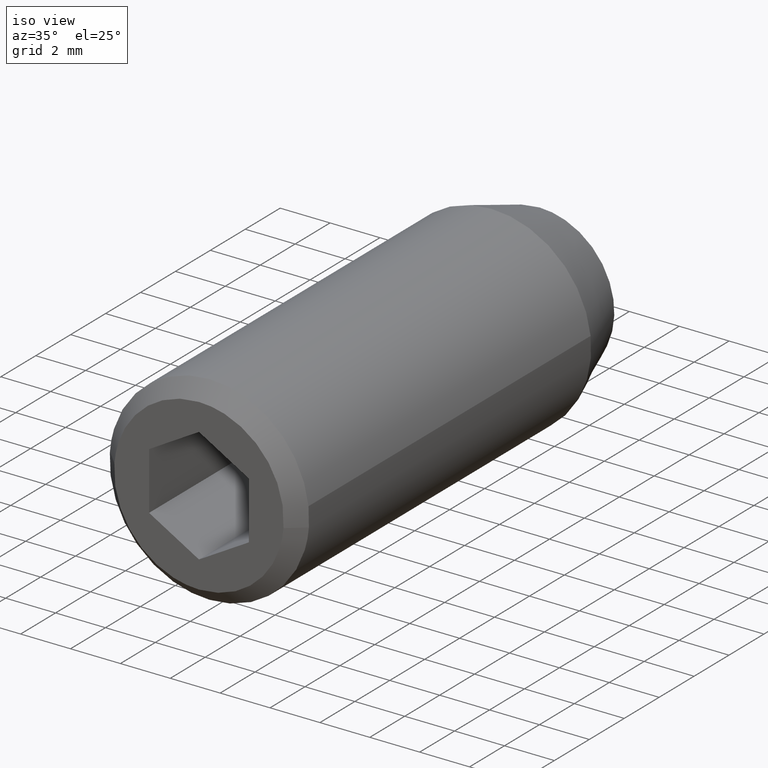
[diagram: clean part render]
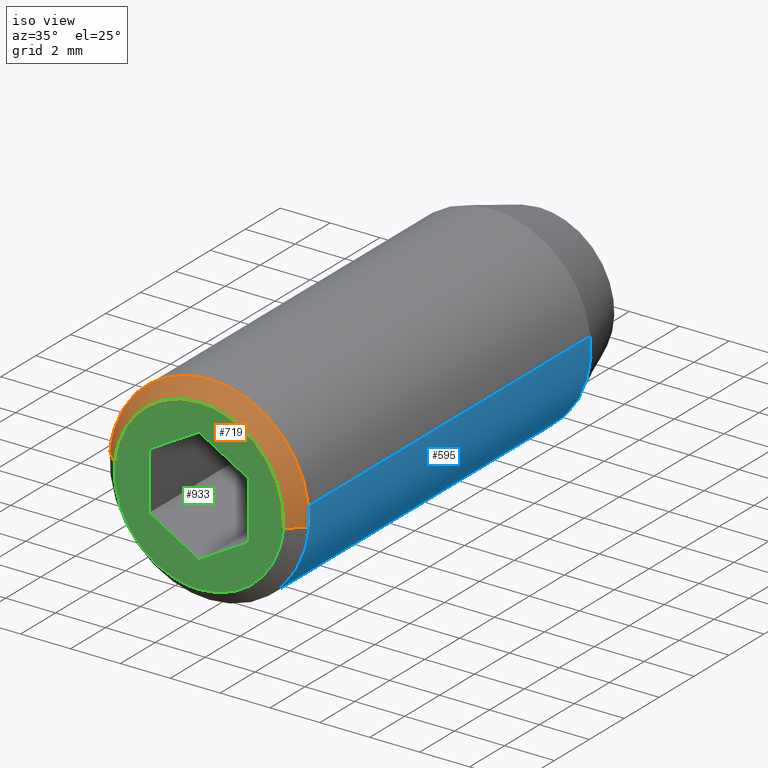
[diagram: same view with three faces highlighted in distinct colors, each labeled with its STEP entity id]
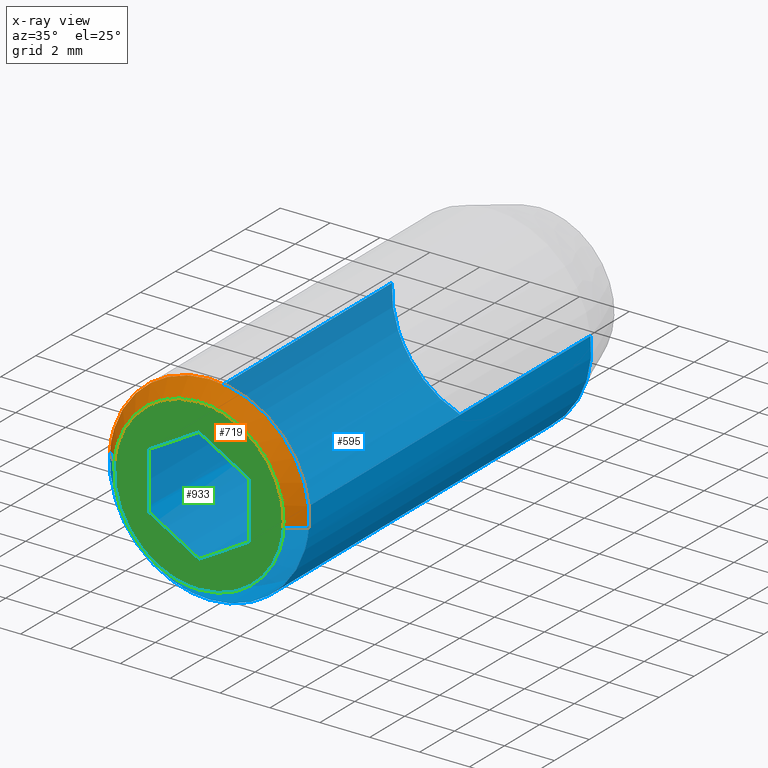
[diagram: x-ray of the same camera — body ghosted, the three highlighted faces saturated]
A machine part, iso view with three faces highlighted in distinct colors.
The next image is the same camera in x-ray (body ghosted, the three faces saturated) — at least one of them is partly hidden behind the body in this view.
Their STEP definitions:

[orange] entity #719 — the highlighted face is a freeform B-spline surface patch.
#457=CARTESIAN_POINT('',(3.973876773741293,-18.899999999999999,0.456402658975039));
#458=VERTEX_POINT('',#457);
#459=CARTESIAN_POINT('',(0.0,-18.899999999999999,3.999999999999999));
#460=VERTEX_POINT('',#459);
#461=CARTESIAN_POINT('',(3.973876773741293,-18.900000000000002,0.456402658975039));
#462=CARTESIAN_POINT('',(3.566892022851084,-18.899999999999999,3.999999999999999));
#463=CARTESIAN_POINT('',(0.0,-18.899999999999999,3.999999999999999));
#471=(BOUNDED_CURVE()B_SPLINE_CURVE(2,(#461,#462,#463),.UNSPECIFIED.,.F.,.U.)B_SPLINE_CURVE_WITH_KNOTS((3,3),(0.269767755877767,0.500000000000000),.UNSPECIFIED.)CURVE()GEOMETRIC_REPRESENTATION_ITEM()RATIONAL_B_SPLINE_CURVE((0.957343736458379,0.730266147777579,1.0))REPRESENTATION_ITEM(''));
#472=EDGE_CURVE('',#458,#460,#471,.T.);
#488=CARTESIAN_POINT('',(-3.987669334934627,-18.899999999994701,0.313836382952172));
#489=VERTEX_POINT('',#488);
#503=CARTESIAN_POINT('',(0.0,-18.899999999999999,3.999999999999999));
#504=CARTESIAN_POINT('',(-3.697561966557721,-18.900000000000006,4.0));
#505=CARTESIAN_POINT('',(-3.987669334934627,-18.899999999994701,0.313836382952172));
#513=(BOUNDED_CURVE()B_SPLINE_CURVE(2,(#503,#504,#505),.UNSPECIFIED.,.F.,.U.)B_SPLINE_CURVE_WITH_KNOTS((3,3),(0.500000000000000,0.736331300629296),.UNSPECIFIED.)CURVE()GEOMETRIC_REPRESENTATION_ITEM()RATIONAL_B_SPLINE_CURVE((1.0,0.723120658609264,0.969723356164571))REPRESENTATION_ITEM(''));
#514=EDGE_CURVE('',#460,#489,#513,.T.);
#541=CARTESIAN_POINT('',(3.987669334934625,-18.899999999994701,-0.313836382952173));
#542=VERTEX_POINT('',#541);
#543=CARTESIAN_POINT('',(3.987669334934625,-18.899999999994698,-0.313836382952173));
#544=CARTESIAN_POINT('',(4.000000000000001,-18.899999999999991,-0.157160428071241));
#545=CARTESIAN_POINT('',(4.0,-18.899999999999999,-6.735335E-016));
#546=CARTESIAN_POINT('',(4.000000000000000,-18.899999999999999,0.228948940114904));
#547=CARTESIAN_POINT('',(3.973876773741293,-18.900000000000006,0.456402658975039));
#555=(BOUNDED_CURVE()B_SPLINE_CURVE(2,(#543,#544,#545,#546,#547),.UNSPECIFIED.,.F.,.U.)B_SPLINE_CURVE_WITH_KNOTS((3,2,3),(0.236331300629296,0.250000000000000,0.269767755877768),.UNSPECIFIED.)CURVE()GEOMETRIC_REPRESENTATION_ITEM()RATIONAL_B_SPLINE_CURVE((0.969723356164571,0.983986122577284,1.0,0.976840633408968,0.957343736458379))REPRESENTATION_ITEM(''));
#556=EDGE_CURVE('',#542,#458,#555,.T.);
#615=CARTESIAN_POINT('',(3.389518934693979,-19.499999999996639,-0.266760925500477));
#616=VERTEX_POINT('',#615);
#617=CARTESIAN_POINT('',(3.389518934693979,-19.499999999996639,-0.266760925500477));
#618=CARTESIAN_POINT('',(3.987669334934625,-18.899999999994701,-0.313836382952173));
#619=QUASI_UNIFORM_CURVE('',1,(#617,#618),.UNSPECIFIED.,.F.,.U.);
#620=EDGE_CURVE('',#616,#542,#619,.T.);
#637=CARTESIAN_POINT('',(-3.389518934693980,-19.499999999996639,0.266760925500477));
#638=VERTEX_POINT('',#637);
#654=CARTESIAN_POINT('',(-3.389518934693980,-19.499999999996639,0.266760925500477));
#655=CARTESIAN_POINT('',(-3.987669334934627,-18.899999999994701,0.313836382952172));
#656=QUASI_UNIFORM_CURVE('',1,(#654,#655),.UNSPECIFIED.,.F.,.U.);
#657=EDGE_CURVE('',#638,#489,#656,.T.);
#664=CARTESIAN_POINT('',(-3.374565174686632,-19.515000000000001,0.265584039038756));
#665=CARTESIAN_POINT('',(-3.108981135647875,-19.515000000000004,3.640149213725388));
#666=CARTESIAN_POINT('',(0.265584039038757,-19.515000000000001,3.374565174686631));
#667=CARTESIAN_POINT('',(3.640149213725390,-19.515000000000004,3.108981135647875));
#668=CARTESIAN_POINT('',(3.374565174686632,-19.515000000000001,-0.265584039038757));
#669=CARTESIAN_POINT('',(-4.002996938938681,-18.884625000000000,0.315042691508199));
#670=CARTESIAN_POINT('',(-3.687954247430481,-18.884624999999993,4.318039630446880));
#671=CARTESIAN_POINT('',(0.315042691508200,-18.884625000000000,4.002996938938680));
#672=CARTESIAN_POINT('',(4.318039630446882,-18.884624999999993,3.687954247430481));
#673=CARTESIAN_POINT('',(4.002996938938681,-18.884625000000000,-0.315042691508200));
#681=(BOUNDED_SURFACE()B_SPLINE_SURFACE(2,1,((#664,#669),(#665,#670),(#666,#671),(#667,#672),(#668,#673)),.UNSPECIFIED.,.F.,.F.,.U.)B_SPLINE_SURFACE_WITH_KNOTS((3,2,3),(2,2),(0.0,6.652891132055504,13.305782264111009),(0.0,1.0),.UNSPECIFIED.)GEOMETRIC_REPRESENTATION_ITEM()RATIONAL_B_SPLINE_SURFACE(((1.0,1.0),(0.707106781186548,0.707106781186548),(1.0,1.0),(0.707106781186548,0.707106781186548),(1.0,1.0)))REPRESENTATION_ITEM('')SURFACE());
#682=ORIENTED_EDGE('',*,*,#556,.T.);
#683=ORIENTED_EDGE('',*,*,#472,.T.);
#684=ORIENTED_EDGE('',*,*,#514,.T.);
#685=ORIENTED_EDGE('',*,*,#657,.F.);
#686=CARTESIAN_POINT('',(0.0,-19.500000000000000,3.399999999999999));
#687=VERTEX_POINT('',#686);
#688=CARTESIAN_POINT('',(0.0,-19.500000000000000,3.399999999999999));
#689=CARTESIAN_POINT('',(-3.142927671590397,-19.499999999999996,3.400000000000000));
#690=CARTESIAN_POINT('',(-3.389518934693981,-19.499999999996636,0.266760925500477));
#698=(BOUNDED_CURVE()B_SPLINE_CURVE(2,(#688,#689,#690),.UNSPECIFIED.,.F.,.U.)B_SPLINE_CURVE_WITH_KNOTS((3,3),(0.500000000000000,0.736331300630184),.UNSPECIFIED.)CURVE()GEOMETRIC_REPRESENTATION_ITEM()RATIONAL_B_SPLINE_CURVE((1.0,0.723120658608223,0.969723356166425))REPRESENTATION_ITEM(''));
#699=EDGE_CURVE('',#687,#638,#698,.T.);
#700=ORIENTED_EDGE('',*,*,#699,.F.);
#701=CARTESIAN_POINT('',(3.389518934693980,-19.499999999996636,-0.266760925500477));
#702=CARTESIAN_POINT('',(3.400000000000000,-19.499999999999993,-0.133586363851735));
#703=CARTESIAN_POINT('',(3.400000000000000,-19.500000000000000,-6.735335E-016));
#704=CARTESIAN_POINT('',(3.400000000000001,-19.500000000000004,3.399999999999999));
#705=CARTESIAN_POINT('',(0.0,-19.500000000000000,3.399999999999999));
#713=(BOUNDED_CURVE()B_SPLINE_CURVE(2,(#701,#702,#703,#704,#705),.UNSPECIFIED.,.F.,.U.)B_SPLINE_CURVE_WITH_KNOTS((3,2,3),(0.236331300630184,0.250000000000000,0.500000000000000),.UNSPECIFIED.)CURVE()GEOMETRIC_REPRESENTATION_ITEM()RATIONAL_B_SPLINE_CURVE((0.969723356166425,0.983986122578324,1.0,0.707106781186548,1.0))REPRESENTATION_ITEM(''));
#714=EDGE_CURVE('',#616,#687,#713,.T.);
#715=ORIENTED_EDGE('',*,*,#714,.F.);
#716=ORIENTED_EDGE('',*,*,#620,.T.);
#717=EDGE_LOOP('',(#682,#683,#684,#685,#700,#715,#716));
#718=FACE_OUTER_BOUND('',#717,.T.);
#719=ADVANCED_FACE('',(#718),#681,.T.);

[blue] entity #595 — the highlighted face is a freeform B-spline surface patch.
#309=CARTESIAN_POINT('',(-3.992539385356825,-2.747476995765231,0.244190999084494));
#310=VERTEX_POINT('',#309);
#331=CARTESIAN_POINT('',(3.973877514733711,-2.747477000000000,0.456396207096037));
#332=VERTEX_POINT('',#331);
#346=CARTESIAN_POINT('',(0.0,-2.747477000000000,-4.000000000000001));
#347=VERTEX_POINT('',#346);
#348=CARTESIAN_POINT('',(0.0,-2.747477000000000,-4.000000000000001));
#349=CARTESIAN_POINT('',(4.000000000000000,-2.747477000000000,-4.000000000000001));
#350=CARTESIAN_POINT('',(4.0,-2.747477000000000,-6.735335E-016));
#351=CARTESIAN_POINT('',(4.000000000000001,-2.747477000000000,0.228945682324833));
#352=CARTESIAN_POINT('',(3.973877514733711,-2.747477000000000,0.456396207096037));
#360=(BOUNDED_CURVE()B_SPLINE_CURVE(2,(#348,#349,#350,#351,#352),.UNSPECIFIED.,.F.,.U.)B_SPLINE_CURVE_WITH_KNOTS((3,2,3),(0.0,0.250000000000000,0.269767481110062),.UNSPECIFIED.)CURVE()GEOMETRIC_REPRESENTATION_ITEM()RATIONAL_B_SPLINE_CURVE((1.0,0.707106781186548,1.0,0.976840955319359,0.957344278464731))REPRESENTATION_ITEM(''));
#361=EDGE_CURVE('',#347,#332,#360,.T.);
#363=CARTESIAN_POINT('',(-3.243894291881534,-2.747477000000260,-2.340331135352250));
#364=VERTEX_POINT('',#363);
#365=CARTESIAN_POINT('',(-3.243894291881534,-2.747477000000260,-2.340331135352251));
#366=CARTESIAN_POINT('',(-2.046514115826994,-2.747477000000000,-4.000000000000002));
#367=CARTESIAN_POINT('',(0.0,-2.747477000000000,-4.000000000000001));
#375=(BOUNDED_CURVE()B_SPLINE_CURVE(2,(#365,#366,#367),.UNSPECIFIED.,.F.,.U.)B_SPLINE_CURVE_WITH_KNOTS((3,3),(0.850743050382192,1.0),.UNSPECIFIED.)CURVE()GEOMETRIC_REPRESENTATION_ITEM()RATIONAL_B_SPLINE_CURVE((0.859068214727257,0.825134606384651,1.0))REPRESENTATION_ITEM(''));
#376=EDGE_CURVE('',#364,#347,#375,.T.);
#416=CARTESIAN_POINT('',(-3.992539385356825,-2.747476995765231,0.244190999084494));
#417=CARTESIAN_POINT('',(-4.000000000000001,-2.747477000000000,0.122209469285321));
#418=CARTESIAN_POINT('',(-4.0,-2.747477000000000,-6.735335E-016));
#419=CARTESIAN_POINT('',(-4.000000000000000,-2.747477000000000,-1.292305514716118));
#420=CARTESIAN_POINT('',(-3.243894291881534,-2.747477000000260,-2.340331135352250));
#428=(BOUNDED_CURVE()B_SPLINE_CURVE(2,(#416,#417,#418,#419,#420),.UNSPECIFIED.,.F.,.U.)B_SPLINE_CURVE_WITH_KNOTS((3,2,3),(0.739333098763761,0.750000000000000,0.850743050382192),.UNSPECIFIED.)CURVE()GEOMETRIC_REPRESENTATION_ITEM()RATIONAL_B_SPLINE_CURVE((0.976072334265566,0.987502947848611,1.0,0.881972174801896,0.859068214727257))REPRESENTATION_ITEM(''));
#429=EDGE_CURVE('',#310,#364,#428,.T.);
#457=CARTESIAN_POINT('',(3.973876773741293,-18.899999999999999,0.456402658975039));
#458=VERTEX_POINT('',#457);
#474=CARTESIAN_POINT('',(3.973877514733711,-2.747477000000000,0.456396207096037));
#475=CARTESIAN_POINT('',(3.973876773741293,-18.899999999999999,0.456402658975039));
#476=QUASI_UNIFORM_CURVE('',1,(#474,#475),.UNSPECIFIED.,.F.,.U.);
#477=EDGE_CURVE('',#332,#458,#476,.T.);
#481=CARTESIAN_POINT('',(-3.992539218760148,-18.899999999999999,0.244193748204033));
#482=VERTEX_POINT('',#481);
#483=CARTESIAN_POINT('',(-3.992539385356825,-2.747476995765231,0.244190999084494));
#484=CARTESIAN_POINT('',(-3.992539218760148,-18.899999999999999,0.244193748204033));
#485=QUASI_UNIFORM_CURVE('',1,(#483,#484),.UNSPECIFIED.,.F.,.U.);
#486=EDGE_CURVE('',#310,#482,#485,.T.);
#519=CARTESIAN_POINT('',(-3.992539193687467,-2.343663924999999,0.244194158139427));
#520=CARTESIAN_POINT('',(-4.236733351826894,-2.343663925000000,-3.748345035548040));
#521=CARTESIAN_POINT('',(-0.244194158139428,-2.343663924999999,-3.992539193687468));
#522=CARTESIAN_POINT('',(3.748345035548039,-2.343663925000000,-4.236733351826896));
#523=CARTESIAN_POINT('',(3.992539193687467,-2.343663924999999,-0.244194158139429));
#524=CARTESIAN_POINT('',(4.014014553579111,-2.343663925000000,0.106924872386186));
#525=CARTESIAN_POINT('',(3.973876773742854,-2.343663925000000,0.456402658961441));
#526=CARTESIAN_POINT('',(-3.992539193687467,-19.313908401875000,0.244194158139427));
#527=CARTESIAN_POINT('',(-4.236733351826894,-19.313908401875004,-3.748345035548040));
#528=CARTESIAN_POINT('',(-0.244194158139428,-19.313908401875000,-3.992539193687468));
#529=CARTESIAN_POINT('',(3.748345035548039,-19.313908401875004,-4.236733351826896));
#530=CARTESIAN_POINT('',(3.992539193687467,-19.313908401875000,-0.244194158139429));
#531=CARTESIAN_POINT('',(4.014014553579111,-19.313908401875004,0.106924872386186));
#532=CARTESIAN_POINT('',(3.973876773742854,-19.313908401875008,0.456402658961441));
#540=(BOUNDED_SURFACE()B_SPLINE_SURFACE(2,1,((#519,#526),(#520,#527),(#521,#528),(#522,#529),(#523,#530),(#524,#531),(#525,#532)),.UNSPECIFIED.,.F.,.F.,.U.)B_SPLINE_SURFACE_WITH_KNOTS((3,2,2,3),(2,2),(0.0,6.627416997969519,13.254833995939039,14.050124035695379),(0.0,16.970244476875010),.UNSPECIFIED.)GEOMETRIC_REPRESENTATION_ITEM()RATIONAL_B_SPLINE_SURFACE(((1.0,1.0),(0.707106781186548,0.707106781186548),(1.0,1.0),(0.707106781186548,0.707106781186548),(1.0,1.0),(0.964852813742386,0.964852813742386),(0.938140952186599,0.938140952186599)))REPRESENTATION_ITEM('')SURFACE());
#541=CARTESIAN_POINT('',(3.987669334934625,-18.899999999994701,-0.313836382952173));
#542=VERTEX_POINT('',#541);
#543=CARTESIAN_POINT('',(3.987669334934625,-18.899999999994698,-0.313836382952173));
#544=CARTESIAN_POINT('',(4.000000000000001,-18.899999999999991,-0.157160428071241));
#545=CARTESIAN_POINT('',(4.0,-18.899999999999999,-6.735335E-016));
#546=CARTESIAN_POINT('',(4.000000000000000,-18.899999999999999,0.228948940114904));
#547=CARTESIAN_POINT('',(3.973876773741293,-18.900000000000006,0.456402658975039));
#555=(BOUNDED_CURVE()B_SPLINE_CURVE(2,(#543,#544,#545,#546,#547),.UNSPECIFIED.,.F.,.U.)B_SPLINE_CURVE_WITH_KNOTS((3,2,3),(0.236331300629296,0.250000000000000,0.269767755877768),.UNSPECIFIED.)CURVE()GEOMETRIC_REPRESENTATION_ITEM()RATIONAL_B_SPLINE_CURVE((0.969723356164571,0.983986122577284,1.0,0.976840633408968,0.957343736458379))REPRESENTATION_ITEM(''));
#556=EDGE_CURVE('',#542,#458,#555,.T.);
#557=ORIENTED_EDGE('',*,*,#556,.F.);
#558=CARTESIAN_POINT('',(0.0,-18.899999999999999,-4.000000000000001));
#559=VERTEX_POINT('',#558);
#560=CARTESIAN_POINT('',(0.0,-18.899999999999999,-4.000000000000001));
#561=CARTESIAN_POINT('',(3.697561966557722,-18.900000000000009,-4.000000000000001));
#562=CARTESIAN_POINT('',(3.987669334934625,-18.899999999994698,-0.313836382952173));
#570=(BOUNDED_CURVE()B_SPLINE_CURVE(2,(#560,#561,#562),.UNSPECIFIED.,.F.,.U.)B_SPLINE_CURVE_WITH_KNOTS((3,3),(0.0,0.236331300629296),.UNSPECIFIED.)CURVE()GEOMETRIC_REPRESENTATION_ITEM()RATIONAL_B_SPLINE_CURVE((1.0,0.723120658609264,0.969723356164571))REPRESENTATION_ITEM(''));
#571=EDGE_CURVE('',#559,#542,#570,.T.);
#572=ORIENTED_EDGE('',*,*,#571,.F.);
#573=CARTESIAN_POINT('',(-3.992539218760148,-18.899999999999991,0.244193748204033));
#574=CARTESIAN_POINT('',(-4.000000000000001,-18.899999999999999,0.122210642109545));
#575=CARTESIAN_POINT('',(-4.0,-18.899999999999999,-6.735335E-016));
#576=CARTESIAN_POINT('',(-4.000000000000000,-18.900000000000002,-4.000000000000001));
#577=CARTESIAN_POINT('',(0.0,-18.899999999999999,-4.000000000000001));
#585=(BOUNDED_CURVE()B_SPLINE_CURVE(2,(#573,#574,#575,#576,#577),.UNSPECIFIED.,.F.,.U.)B_SPLINE_CURVE_WITH_KNOTS((3,2,3),(0.739332997674577,0.750000000000000,1.0),.UNSPECIFIED.)CURVE()GEOMETRIC_REPRESENTATION_ITEM()RATIONAL_B_SPLINE_CURVE((0.976072117612038,0.987502829415265,1.0,0.707106781186548,1.0))REPRESENTATION_ITEM(''));
#586=EDGE_CURVE('',#482,#559,#585,.T.);
#587=ORIENTED_EDGE('',*,*,#586,.F.);
#588=ORIENTED_EDGE('',*,*,#486,.F.);
#589=ORIENTED_EDGE('',*,*,#429,.T.);
#590=ORIENTED_EDGE('',*,*,#376,.T.);
#591=ORIENTED_EDGE('',*,*,#361,.T.);
#592=ORIENTED_EDGE('',*,*,#477,.T.);
#593=EDGE_LOOP('',(#557,#572,#587,#588,#589,#590,#591,#592));
#594=FACE_OUTER_BOUND('',#593,.T.);
#595=ADVANCED_FACE('',(#594),#540,.T.);

[green] entity #933 — the highlighted face is a freeform B-spline surface patch.
#615=CARTESIAN_POINT('',(3.389518934693979,-19.499999999996639,-0.266760925500477));
#616=VERTEX_POINT('',#615);
#622=CARTESIAN_POINT('',(0.0,-19.500000000000000,-3.400000000000001));
#623=VERTEX_POINT('',#622);
#624=CARTESIAN_POINT('',(0.0,-19.500000000000000,-3.400000000000001));
#625=CARTESIAN_POINT('',(3.142927671590397,-19.499999999999996,-3.400000000000002));
#626=CARTESIAN_POINT('',(3.389518934693980,-19.499999999996636,-0.266760925500477));
#634=(BOUNDED_CURVE()B_SPLINE_CURVE(2,(#624,#625,#626),.UNSPECIFIED.,.F.,.U.)B_SPLINE_CURVE_WITH_KNOTS((3,3),(0.0,0.236331300630184),.UNSPECIFIED.)CURVE()GEOMETRIC_REPRESENTATION_ITEM()RATIONAL_B_SPLINE_CURVE((1.0,0.723120658608223,0.969723356166425))REPRESENTATION_ITEM(''));
#635=EDGE_CURVE('',#623,#616,#634,.T.);
#637=CARTESIAN_POINT('',(-3.389518934693980,-19.499999999996639,0.266760925500477));
#638=VERTEX_POINT('',#637);
#639=CARTESIAN_POINT('',(-3.389518934693981,-19.499999999996636,0.266760925500477));
#640=CARTESIAN_POINT('',(-3.399999999999999,-19.500000000000007,0.133586363851734));
#641=CARTESIAN_POINT('',(-3.400000000000000,-19.500000000000000,-6.735335E-016));
#642=CARTESIAN_POINT('',(-3.400000000000001,-19.500000000000004,-3.400000000000002));
#643=CARTESIAN_POINT('',(0.0,-19.500000000000000,-3.400000000000001));
#651=(BOUNDED_CURVE()B_SPLINE_CURVE(2,(#639,#640,#641,#642,#643),.UNSPECIFIED.,.F.,.U.)B_SPLINE_CURVE_WITH_KNOTS((3,2,3),(0.736331300630184,0.750000000000000,1.0),.UNSPECIFIED.)CURVE()GEOMETRIC_REPRESENTATION_ITEM()RATIONAL_B_SPLINE_CURVE((0.969723356166424,0.983986122578324,1.0,0.707106781186548,1.0))REPRESENTATION_ITEM(''));
#652=EDGE_CURVE('',#638,#623,#651,.T.);
#686=CARTESIAN_POINT('',(0.0,-19.500000000000000,3.399999999999999));
#687=VERTEX_POINT('',#686);
#688=CARTESIAN_POINT('',(0.0,-19.500000000000000,3.399999999999999));
#689=CARTESIAN_POINT('',(-3.142927671590397,-19.499999999999996,3.400000000000000));
#690=CARTESIAN_POINT('',(-3.389518934693981,-19.499999999996636,0.266760925500477));
#698=(BOUNDED_CURVE()B_SPLINE_CURVE(2,(#688,#689,#690),.UNSPECIFIED.,.F.,.U.)B_SPLINE_CURVE_WITH_KNOTS((3,3),(0.500000000000000,0.736331300630184),.UNSPECIFIED.)CURVE()GEOMETRIC_REPRESENTATION_ITEM()RATIONAL_B_SPLINE_CURVE((1.0,0.723120658608223,0.969723356166425))REPRESENTATION_ITEM(''));
#699=EDGE_CURVE('',#687,#638,#698,.T.);
#701=CARTESIAN_POINT('',(3.389518934693980,-19.499999999996636,-0.266760925500477));
#702=CARTESIAN_POINT('',(3.400000000000000,-19.499999999999993,-0.133586363851735));
#703=CARTESIAN_POINT('',(3.400000000000000,-19.500000000000000,-6.735335E-016));
#704=CARTESIAN_POINT('',(3.400000000000001,-19.500000000000004,3.399999999999999));
#705=CARTESIAN_POINT('',(0.0,-19.500000000000000,3.399999999999999));
#713=(BOUNDED_CURVE()B_SPLINE_CURVE(2,(#701,#702,#703,#704,#705),.UNSPECIFIED.,.F.,.U.)B_SPLINE_CURVE_WITH_KNOTS((3,2,3),(0.236331300630184,0.250000000000000,0.500000000000000),.UNSPECIFIED.)CURVE()GEOMETRIC_REPRESENTATION_ITEM()RATIONAL_B_SPLINE_CURVE((0.969723356166425,0.983986122578324,1.0,0.707106781186548,1.0))REPRESENTATION_ITEM(''));
#714=EDGE_CURVE('',#616,#687,#713,.T.);
#787=CARTESIAN_POINT('',(2.0,-19.500000000000000,1.154701000000000));
#788=VERTEX_POINT('',#787);
#789=CARTESIAN_POINT('',(0.0,-19.500000000000000,2.309401000000000));
#790=VERTEX_POINT('',#789);
#791=CARTESIAN_POINT('',(2.0,-19.500000000000000,1.154701000000000));
#792=CARTESIAN_POINT('',(0.0,-19.500000000000000,2.309401000000000));
#793=QUASI_UNIFORM_CURVE('',1,(#791,#792),.UNSPECIFIED.,.F.,.U.);
#794=EDGE_CURVE('',#788,#790,#793,.T.);
#815=CARTESIAN_POINT('',(2.0,-19.500000000000000,-1.154701000000000));
#816=VERTEX_POINT('',#815);
#817=CARTESIAN_POINT('',(2.0,-19.500000000000000,-1.154701000000000));
#818=CARTESIAN_POINT('',(2.0,-19.500000000000000,1.154701000000000));
#819=QUASI_UNIFORM_CURVE('',1,(#817,#818),.UNSPECIFIED.,.F.,.U.);
#820=EDGE_CURVE('',#816,#788,#819,.T.);
#837=CARTESIAN_POINT('',(0.0,-19.500000000000000,-2.309401000000000));
#838=VERTEX_POINT('',#837);
#839=CARTESIAN_POINT('',(0.0,-19.500000000000000,-2.309401000000000));
#840=CARTESIAN_POINT('',(2.0,-19.500000000000000,-1.154701000000000));
#841=QUASI_UNIFORM_CURVE('',1,(#839,#840),.UNSPECIFIED.,.F.,.U.);
#842=EDGE_CURVE('',#838,#816,#841,.T.);
#859=CARTESIAN_POINT('',(-2.0,-19.500000000000000,-1.154701000000000));
#860=VERTEX_POINT('',#859);
#861=CARTESIAN_POINT('',(-2.0,-19.500000000000000,-1.154701000000000));
#862=CARTESIAN_POINT('',(0.0,-19.500000000000000,-2.309401000000000));
#863=QUASI_UNIFORM_CURVE('',1,(#861,#862),.UNSPECIFIED.,.F.,.U.);
#864=EDGE_CURVE('',#860,#838,#863,.T.);
#881=CARTESIAN_POINT('',(-2.0,-19.500000000000000,1.154701000000000));
#882=VERTEX_POINT('',#881);
#883=CARTESIAN_POINT('',(-2.0,-19.500000000000000,1.154701000000000));
#884=CARTESIAN_POINT('',(-2.0,-19.500000000000000,-1.154701000000000));
#885=QUASI_UNIFORM_CURVE('',1,(#883,#884),.UNSPECIFIED.,.F.,.U.);
#886=EDGE_CURVE('',#882,#860,#885,.T.);
#903=CARTESIAN_POINT('',(0.0,-19.500000000000000,2.309401000000000));
#904=CARTESIAN_POINT('',(-2.0,-19.500000000000000,1.154701000000000));
#905=QUASI_UNIFORM_CURVE('',1,(#903,#904),.UNSPECIFIED.,.F.,.U.);
#906=EDGE_CURVE('',#790,#882,#905,.T.);
#914=CARTESIAN_POINT('',(-3.738622159271290,-19.500000000000000,3.739660114487349));
#915=CARTESIAN_POINT('',(-3.738622159271290,-19.500000000000000,-3.739660175284088));
#916=CARTESIAN_POINT('',(3.738622341661503,-19.500000000000000,3.739660114487349));
#917=CARTESIAN_POINT('',(3.738622341661503,-19.500000000000000,-3.739660175284088));
#918=B_SPLINE_SURFACE_WITH_KNOTS('',1,1,((#914,#916),(#915,#917)),.UNSPECIFIED.,.F.,.F.,.U.,(2,2),(2,2),(0.0,7.479320289771438),(0.0,7.477244500932794),.UNSPECIFIED.);
#919=ORIENTED_EDGE('',*,*,#635,.T.);
#920=ORIENTED_EDGE('',*,*,#714,.T.);
#921=ORIENTED_EDGE('',*,*,#699,.T.);
#922=ORIENTED_EDGE('',*,*,#652,.T.);
#923=EDGE_LOOP('',(#919,#920,#921,#922));
#924=FACE_OUTER_BOUND('',#923,.T.);
#925=ORIENTED_EDGE('',*,*,#906,.F.);
#926=ORIENTED_EDGE('',*,*,#794,.F.);
#927=ORIENTED_EDGE('',*,*,#820,.F.);
#928=ORIENTED_EDGE('',*,*,#842,.F.);
#929=ORIENTED_EDGE('',*,*,#864,.F.);
#930=ORIENTED_EDGE('',*,*,#886,.F.);
#931=EDGE_LOOP('',(#925,#926,#927,#928,#929,#930));
#932=FACE_BOUND('',#931,.T.);
#933=ADVANCED_FACE('',(#924,#932),#918,.T.);